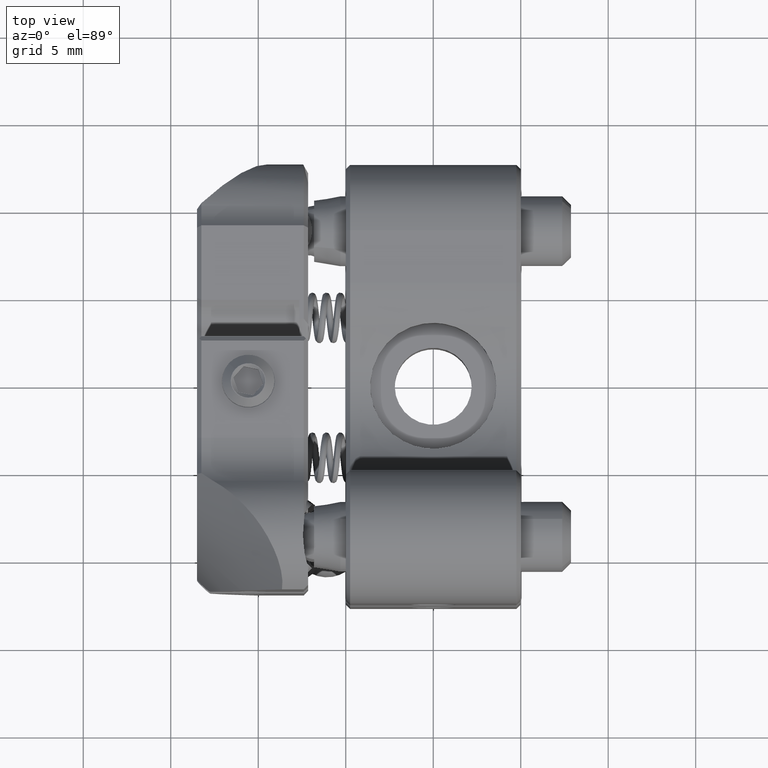
[diagram: clean part render]
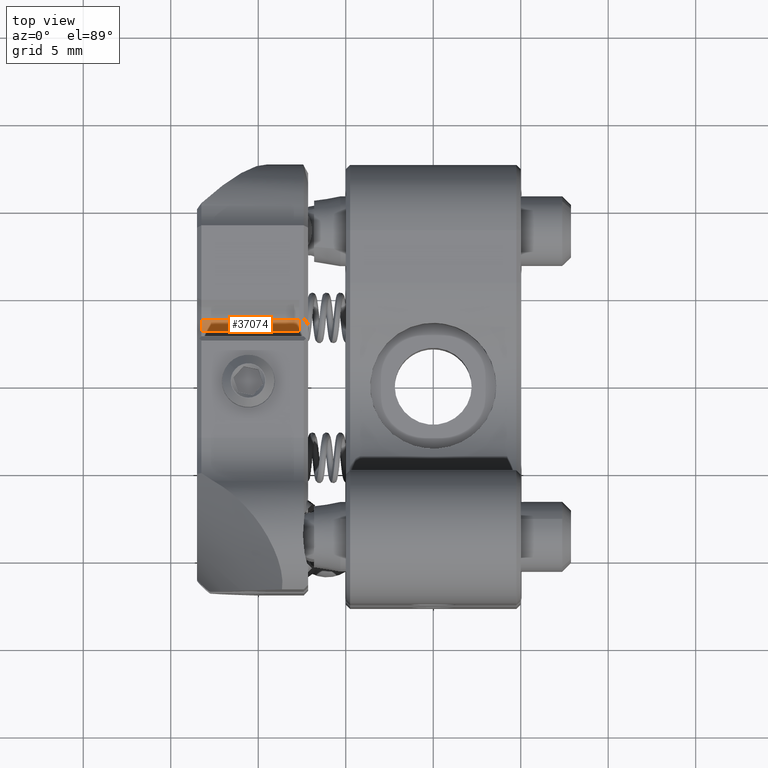
[diagram: same view with one face highlighted and labeled with its STEP entity id]
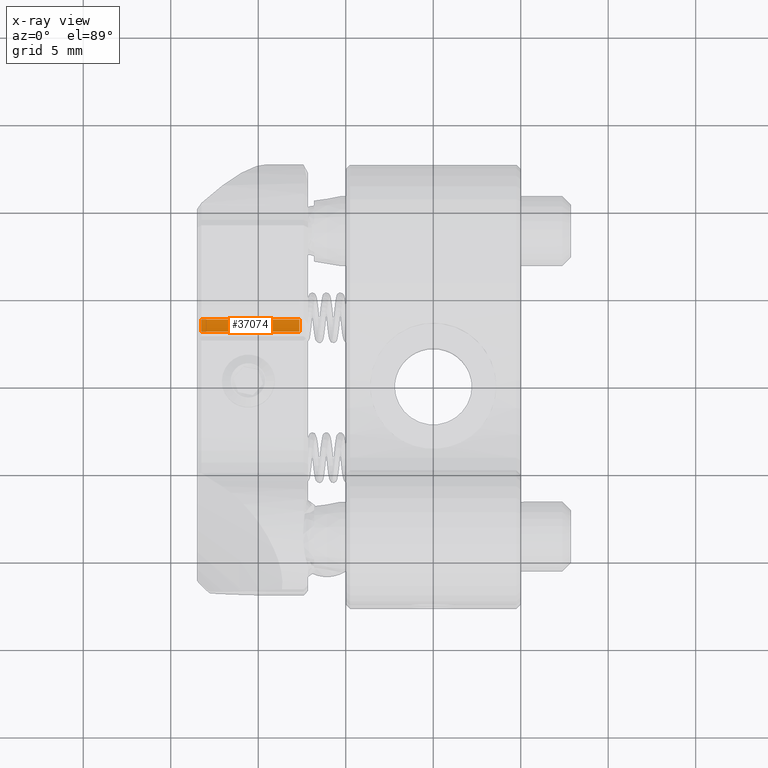
[diagram: x-ray of the same camera — body ghosted, the highlighted face saturated]
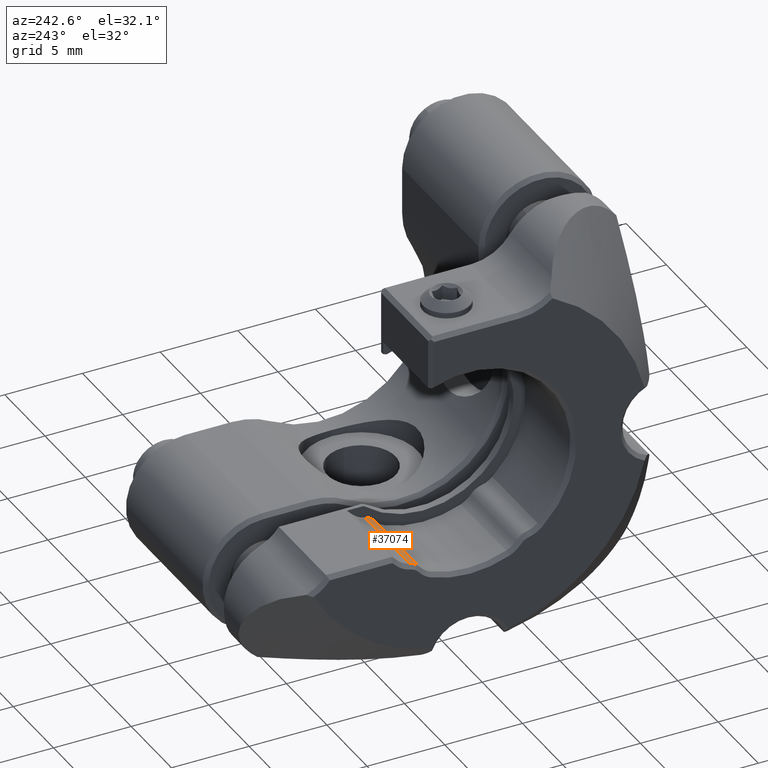
[diagram: same view with one face highlighted and labeled with its STEP entity id]
A machine part, top view. The second image highlights one B-rep face of the part: STEP entity #37074.
The next image is the same camera in x-ray: the body ghosted, the highlighted face saturated — about 0% of this face is hidden behind the body in this view.
A second angle (auxiliary view) of the same face is appended — the face is thin or edge-on in the first view.
In plain terms, the highlighted cylindrical surface (edge-blend (fillet) strip) has radius 1.15 mm, axis along (-1, 0, 0).
Its self-contained STEP definition (entity closure, byte-faithful):
#2259 = ORIENTED_EDGE ( 'NONE', *, *, #46500, .T. ) ;
#5581 = DIRECTION ( 'NONE',  ( -1.000000000000000000, 0.000000000000000000, 0.000000000000000000 ) ) ;
#7036 = VERTEX_POINT ( 'NONE', #28595 ) ;
#11536 = DIRECTION ( 'NONE',  ( 0.000000000000000000, -7.542275982507868980E-16, 1.000000000000000000 ) ) ;
#12617 = AXIS2_PLACEMENT_3D ( 'NONE', #53171, #39095, #59555 ) ;
#14195 = EDGE_LOOP ( 'NONE', ( #2259, #48698, #36779, #62926 ) ) ;
#14761 = CARTESIAN_POINT ( 'NONE',  ( 11.51930770422039529, 3.096325331290725291, -5.645934562276541335 ) ) ;
#19991 = EDGE_CURVE ( 'NONE', #60327, #50700, #31619, .T. ) ;
#20973 = DIRECTION ( 'NONE',  ( 1.000000000000000000, -0.000000000000000000, -0.000000000000000000 ) ) ;
#21951 = CARTESIAN_POINT ( 'NONE',  ( -13.24831131914828219, 3.096325331323972030, -5.645934562302588056 ) ) ;
#24189 = DIRECTION ( 'NONE',  ( 1.000000000000000000, -0.000000000000000000, -0.000000000000000000 ) ) ;
#25692 = VECTOR ( 'NONE', #5581, 1000.000000000000000 ) ;
#28595 = CARTESIAN_POINT ( 'NONE',  ( -7.648311319104465156, 3.096325331290724847, -5.645934562276540447 ) ) ;
#31619 = CIRCLE ( 'NONE', #45598, 1.149999999999998135 ) ;
#35026 = DIRECTION ( 'NONE',  ( 0.000000000000000000, -7.542275982507868980E-16, 1.000000000000000000 ) ) ;
#36068 = EDGE_CURVE ( 'NONE', #62652, #7036, #65176, .T. ) ;
#36779 = ORIENTED_EDGE ( 'NONE', *, *, #61852, .T. ) ;
#37074 = ADVANCED_FACE ( 'NONE', ( #44125 ), #64584, .T. ) ;
#39095 = DIRECTION ( 'NONE',  ( -1.000000000000000000, 0.000000000000000000, 0.000000000000000000 ) ) ;
#40558 = LINE ( 'NONE', #50942, #25692 ) ;
#42128 = CARTESIAN_POINT ( 'NONE',  ( -7.648311319104465156, 4.009999999999995346, -6.344288770224771667 ) ) ;
#44125 = FACE_OUTER_BOUND ( 'NONE', #14195, .T. ) ;
#45598 = AXIS2_PLACEMENT_3D ( 'NONE', #55503, #59550, #35026 ) ;
#46500 = EDGE_CURVE ( 'NONE', #50700, #7036, #66132, .T. ) ;
#48550 = CARTESIAN_POINT ( 'NONE',  ( -7.648311319104465156, 3.773771104767963624, -5.218812911284453904 ) ) ;
#48698 = ORIENTED_EDGE ( 'NONE', *, *, #36068, .F. ) ;
#50042 = CARTESIAN_POINT ( 'NONE',  ( -13.24831131913407134, 3.773771104772578155, -5.218812911294171464 ) ) ;
#50700 = VERTEX_POINT ( 'NONE', #21951 ) ;
#50942 = CARTESIAN_POINT ( 'NONE',  ( 11.51930770422039529, 3.773771104767964069, -5.218812911284453016 ) ) ;
#51274 = VECTOR ( 'NONE', #24189, 1000.000000000000000 ) ;
#53171 = CARTESIAN_POINT ( 'NONE',  ( 11.51930770422039529, 4.009999999999995346, -6.344288770224771667 ) ) ;
#55503 = CARTESIAN_POINT ( 'NONE',  ( -13.24831131910446835, 4.009999999999995346, -6.344288770224771667 ) ) ;
#59550 = DIRECTION ( 'NONE',  ( 1.000000000000000000, -0.000000000000000000, -0.000000000000000000 ) ) ;
#59555 = DIRECTION ( 'NONE',  ( 0.000000000000000000, -7.542275982507868980E-16, 1.000000000000000000 ) ) ;
#60327 = VERTEX_POINT ( 'NONE', #50042 ) ;
#61852 = EDGE_CURVE ( 'NONE', #62652, #60327, #40558, .T. ) ;
#62652 = VERTEX_POINT ( 'NONE', #48550 ) ;
#62926 = ORIENTED_EDGE ( 'NONE', *, *, #19991, .T. ) ;
#64584 = CYLINDRICAL_SURFACE ( 'NONE', #12617, 1.149999999999998135 ) ;
#65176 = CIRCLE ( 'NONE', #66227, 1.149999999999998135 ) ;
#66132 = LINE ( 'NONE', #14761, #51274 ) ;
#66227 = AXIS2_PLACEMENT_3D ( 'NONE', #42128, #20973, #11536 ) ;